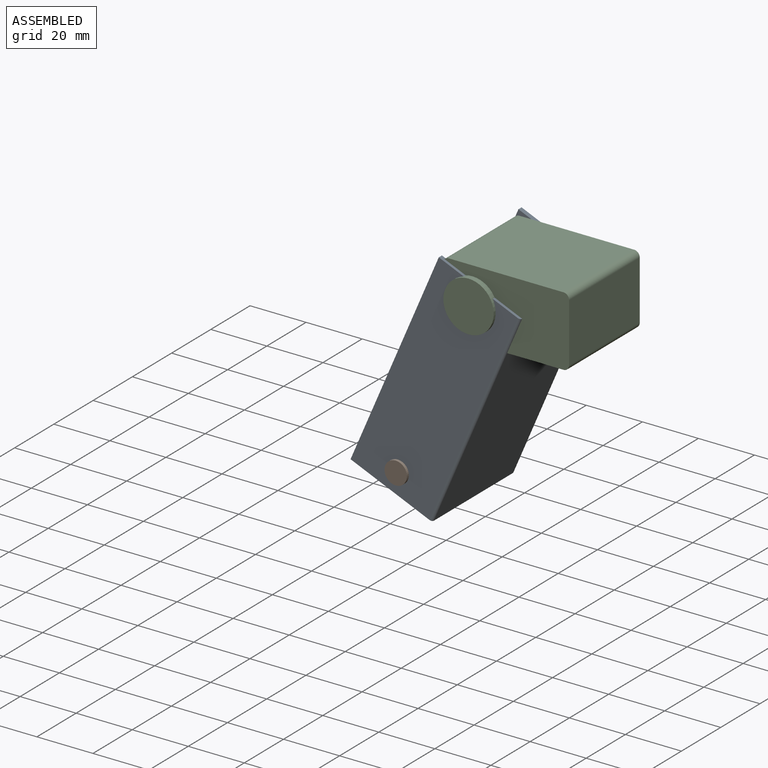
[diagram: assembled view]
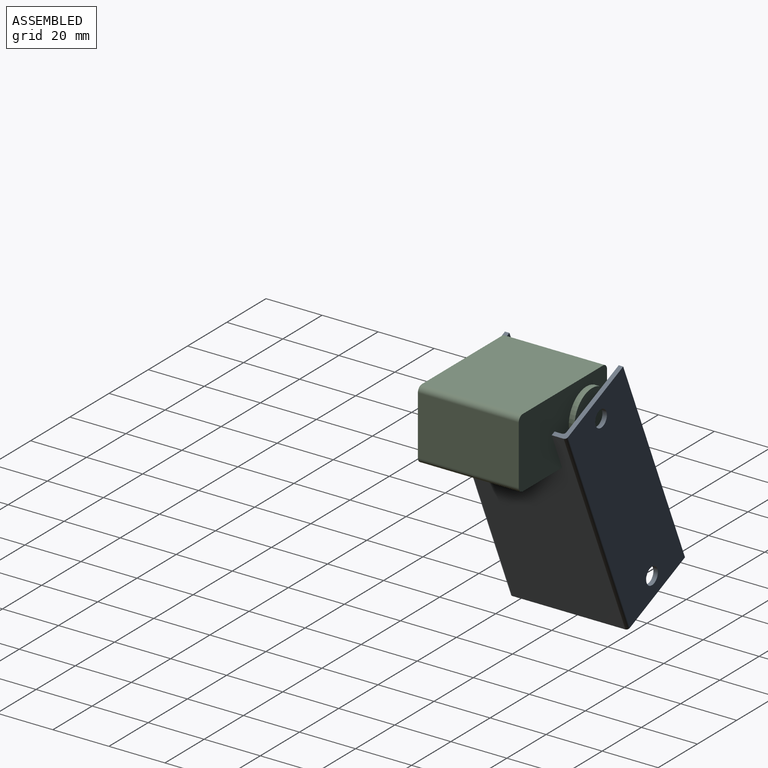
[diagram: assembled view, second angle]
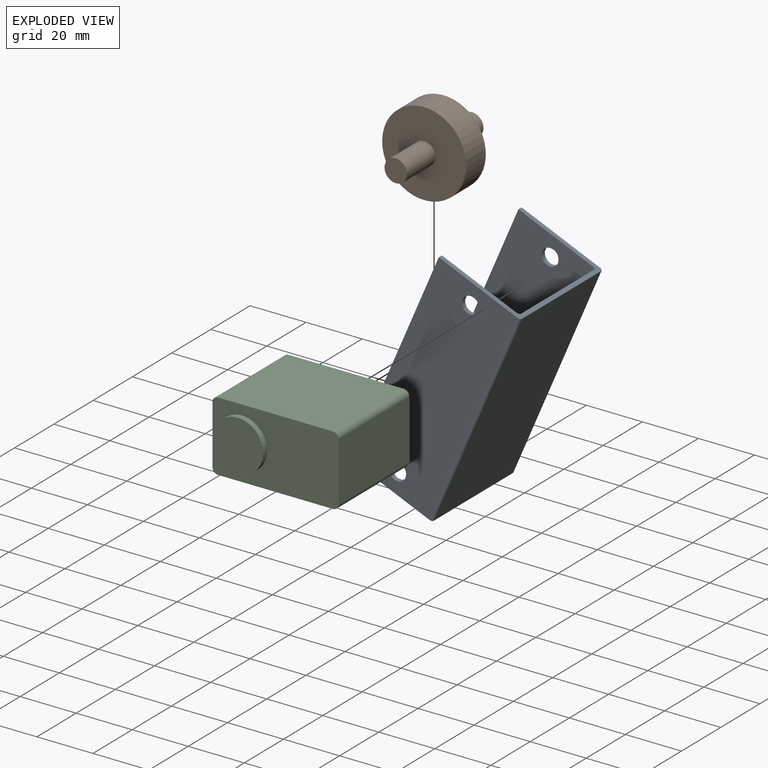
[diagram: exploded view]
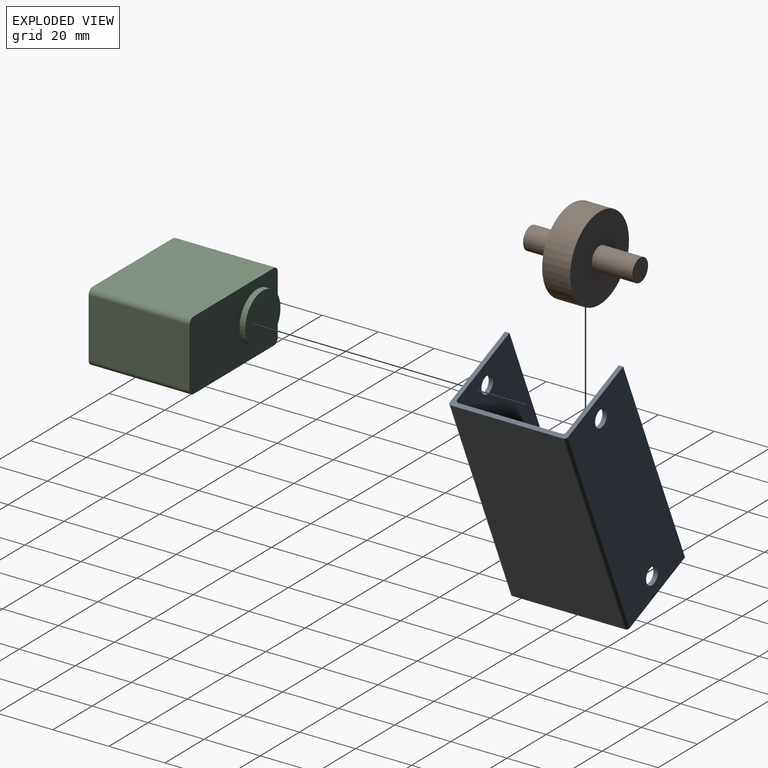
[diagram: exploded view, second angle]
ASSEMBLY  parts=3 mates=2
PART A: 18 faces, bbox 31.6x42.2x80 mm
  f0: plane 80x29mm, normal (0,-1,0), area 2263.5mm2, adj f1,f8,f9,f13,f16,f17
  f1: plane 80x1.6mm, normal (1,0,0), area 128mm2, adj f0,f2,f8,f9
  f2: plane 80x30.6mm, normal (0,1,0), area 2391.5mm2, adj f1,f8,f9,f10,f16,f17
  f3: plane 80x40.2mm, normal (-1,0,0), area 3216mm2, adj f8,f9,f10,f11
  f4: plane 80x30.6mm, normal (0,-1,0), area 2391.5mm2, adj f5,f8,f9,f11,f14,f15
  f5: plane 80x1.6mm, normal (1,0,0), area 128mm2, adj f4,f6,f8,f9
  f6: plane 80x29mm, normal (0,1,0), area 2263.5mm2, adj f5,f8,f9,f12,f14,f15
  f7: plane 80x37mm, normal (1,0,0), area 2960mm2, adj f8,f9,f12,f13
  f8: plane 42.2x31.6mm, normal (0,0,1), area 163.5mm2, adj f0,f1,f2,f3,f4,f5,f6,f7
  f9: plane 42.2x31.6mm, normal (0,0,-1), area 163.5mm2, adj f0,f1,f2,f3,f4,f5,f6,f7
  f10: cylinder r=1mm len=80mm, axis (0,0,-1), area 125.7mm2, adj f2,f3,f8,f9
  f11: cylinder r=1mm len=80mm, axis (0,0,-1), area 125.7mm2, adj f3,f4,f8,f9
  f12: cylinder r=1mm len=80mm, axis (0,0,1), area 125.7mm2, adj f6,f7,f8,f9
  f13: cylinder r=1mm len=80mm, axis (0,0,1), area 125.7mm2, adj f0,f7,f8,f9
  f14: cylinder r=3mm len=6mm, axis (0,-1,0), area 30.2mm2, adj f4,f6
  f15: cylinder r=3mm len=6mm, axis (0,-1,0), area 30.2mm2, adj f4,f6
  f16: cylinder r=3mm len=6mm, axis (0,-1,0), area 30.2mm2, adj f0,f2
  f17: cylinder r=3mm len=6mm, axis (0,-1,0), area 30.2mm2, adj f0,f2
PART B: 7 faces, bbox 30x39x30 mm
  f0: plane 8x8mm, normal (0,1,0), area 50.3mm2, adj f1
  f1: cylinder r=4mm len=14.5mm, axis (0,-1,0), area 364.4mm2, adj f0,f2
  f2: plane 30x30mm, normal (0,1,0), area 656.6mm2, adj f1,f3
  f3: cylinder r=15mm len=30mm, axis (0,-1,0), area 942.5mm2, adj f2,f4
  f4: plane 30x30mm, normal (0,-1,0), area 656.6mm2, adj f3,f5
  f5: cylinder r=4mm len=14.5mm, axis (0,-1,0), area 364.4mm2, adj f4,f6
  f6: plane 8x8mm, normal (0,-1,0), area 50.3mm2, adj f5
PART C: 14 faces, bbox 45x40x25 mm
  f0: plane 41x36mm, normal (0,0,1), area 1476mm2, adj f4,f5,f6,f9
  f1: plane 36x21mm, normal (-1,0,0), area 756mm2, adj f4,f5,f6,f7
  f2: plane 41x36mm, normal (0,0,-1), area 1476mm2, adj f4,f5,f7,f8
  f3: plane 36x21mm, normal (1,0,0), area 756mm2, adj f4,f5,f8,f9
  f4: plane 45x25mm, normal (0,-1,0), area 867.1mm2, adj f0,f1,f2,f3,f6,f7,f8,f9
  f5: plane 45x25mm, normal (0,1,0), area 867.1mm2, adj f0,f1,f2,f3,f6,f7,f8,f9
  f6: cylinder r=2mm len=36mm, axis (0,-1,0), area 113.1mm2, adj f0,f1,f4,f5
  f7: cylinder r=2mm len=36mm, axis (0,1,0), area 113.1mm2, adj f1,f2,f4,f5
  f8: cylinder r=2mm len=36mm, axis (0,-1,0), area 113.1mm2, adj f2,f3,f4,f5
  f9: cylinder r=2mm len=36mm, axis (0,1,0), area 113.1mm2, adj f0,f3,f4,f5
  f10: plane 18x18mm, normal (0,1,0), area 254.5mm2, adj f11
  f11: cylinder r=9mm len=18mm, axis (0,1,0), area 113.1mm2, adj f5,f10
  f12: cylinder r=9mm len=18mm, axis (0,1,0), area 113.1mm2, adj f4,f13
  f13: plane 18x18mm, normal (0,-1,0), area 254.5mm2, adj f12
PLACE A rot(axis=(0,-1,0),156.8deg) t=(-23.31,2.1,12.46)mm
PLACE B rot(axis=(0,-1,0),156.8deg) t=(-37.98,-0.5,-60.67)mm
PLACE C at identity fixed
MATE slider B.f1 <-> A.f15  axis (0,-1,0) through (-37.98,-12.75,-60.67)mm
MATE revolute A.f14 <-> C.f11  axis (0,-1,0) through (-12,-19,0)mm
